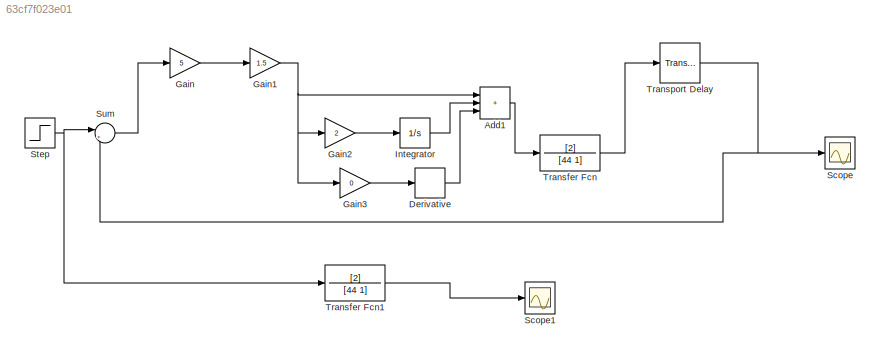
MODEL slx_63cf7f023e01
KIND model
CONFIG AbsTol = auto
CONFIG EnableMultiTasking = off
CONFIG FixedStep = auto
CONFIG MaxStep = auto
CONFIG MinStep = auto
CONFIG RelTol = 1e-3
CONFIG SampleTimeConstraint = Unconstrained
CONFIG SolverName = VariableStepAuto
CONFIG StartTime = 0.0
CONFIG StopTime = 80
BLOCK [Sum] Add1
  IconShape = rectangular
  Inputs = +++
  Ports = [3, 1]
BLOCK [Derivative] Derivative
  NameLocation = left
BLOCK [Gain] Gain
  Gain = 5
  NameLocation = top
BLOCK [Gain] Gain1
  Gain = 1.5
BLOCK [Gain] Gain2
  Gain = 2
BLOCK [Gain] Gain3
  Gain = 0
BLOCK [Integrator] Integrator
  Ports = [1, 1]
BLOCK [Scope] Scope
  Floating = off
  NumInputPorts = 1
  Ports = [1]
  ScopeSpecificationString = Simulink.scopes.TimeScopeBlockCfg('CurrentConfiguration', extmgr.ConfigurationSet(extmgr.Configuration('Core','General UI',true),extmgr.Configuration('Core','Source UI',true),extmgr.Configuration('Sources','WiredSimulink',true),extmgr.Configuration('Visuals','Time Domain',true,'SerializedDisplays',{struct('MinYLimReal','-740739.04628','MaxYLimReal','438439.68715','YLabelReal','','MinYLimMag','    ...<+1755ch>
BLOCK [Scope] Scope1
  Floating = off
  NumInputPorts = 1
  Ports = [1]
  ScopeSpecificationString = Simulink.scopes.TimeScopeBlockCfg('CurrentConfiguration', extmgr.ConfigurationSet(extmgr.Configuration('Core','General UI',true),extmgr.Configuration('Core','Source UI',true),extmgr.Configuration('Sources','WiredSimulink',true,'DataLoggingVariableName','ScopeData1'),extmgr.Configuration('Visuals','Time Domain',true),extmgr.Configuration('Tools','Plot Navigation',true),extmgr.Configuration('Tools',...<+40ch>
BLOCK [Step] Step
  Before = 1
  SampleTime = 0.0001
BLOCK [Sum] Sum
  Inputs = |+-
  Ports = [2, 1]
BLOCK [TransferFcn] Transfer Fcn
  Denominator = [44 1]
  Numerator = [2]
BLOCK [TransferFcn] Transfer Fcn1
  Denominator = [44 1]
  Numerator = [2]
BLOCK [TransportDelay] Transport Delay
  Ports = [1, 1]
LINE Add1:1 -> Transfer Fcn:1
LINE Derivative:1 -> Add1:3
NET Gain1:1 -> Add1:1, Gain2:1, Gain3:1
LINE Gain2:1 -> Integrator:1
LINE Gain3:1 -> Derivative:1
LINE Gain:1 -> Gain1:1
LINE Integrator:1 -> Add1:2
NET Step:1 -> Sum:1, Transfer Fcn1:1
LINE Sum:1 -> Gain:1
LINE Transfer Fcn1:1 -> Scope1:1
LINE Transfer Fcn:1 -> Transport Delay:1
NET Transport Delay:1 -> Scope:1, Sum:2
note: NET lines group one-source signal fan-out (src -> all destinations, sorted); 1:1 wires keep LINE
